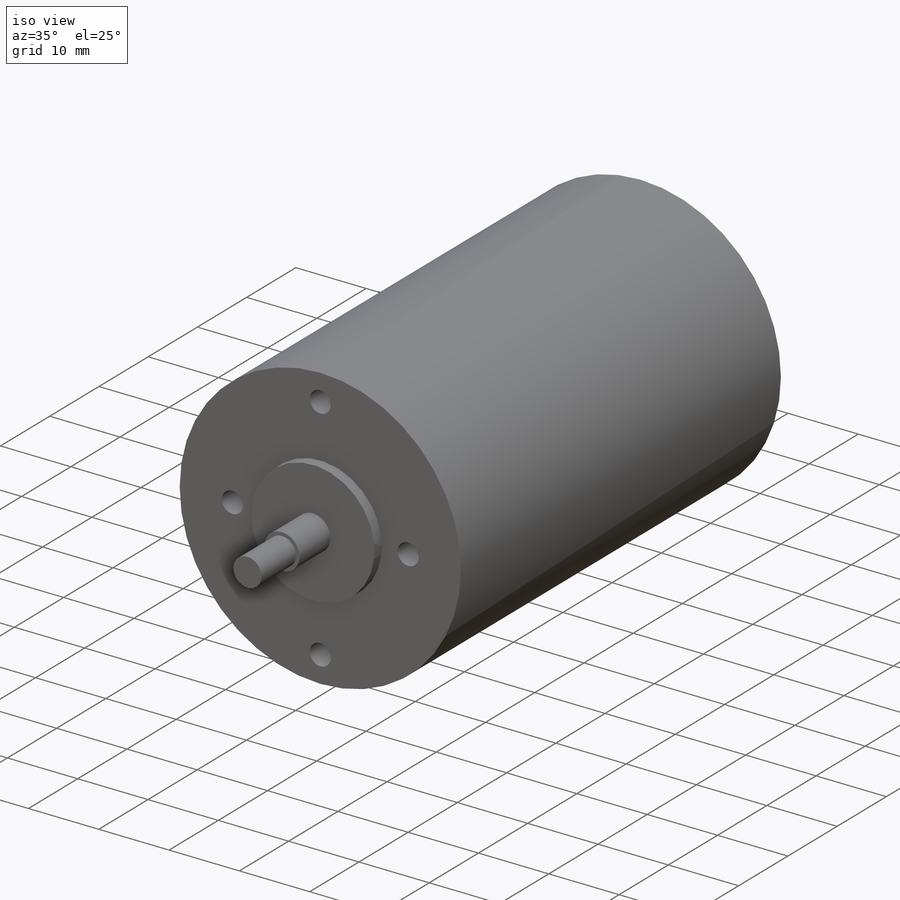
[diagram: iso view]
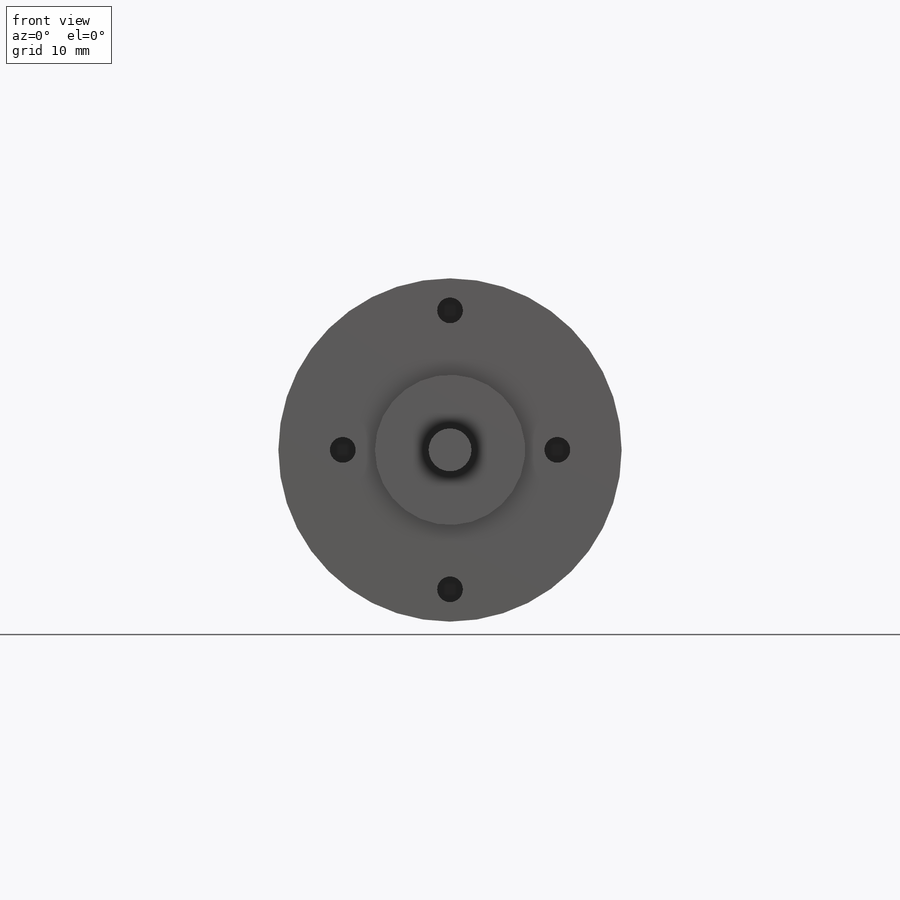
[diagram: front view]
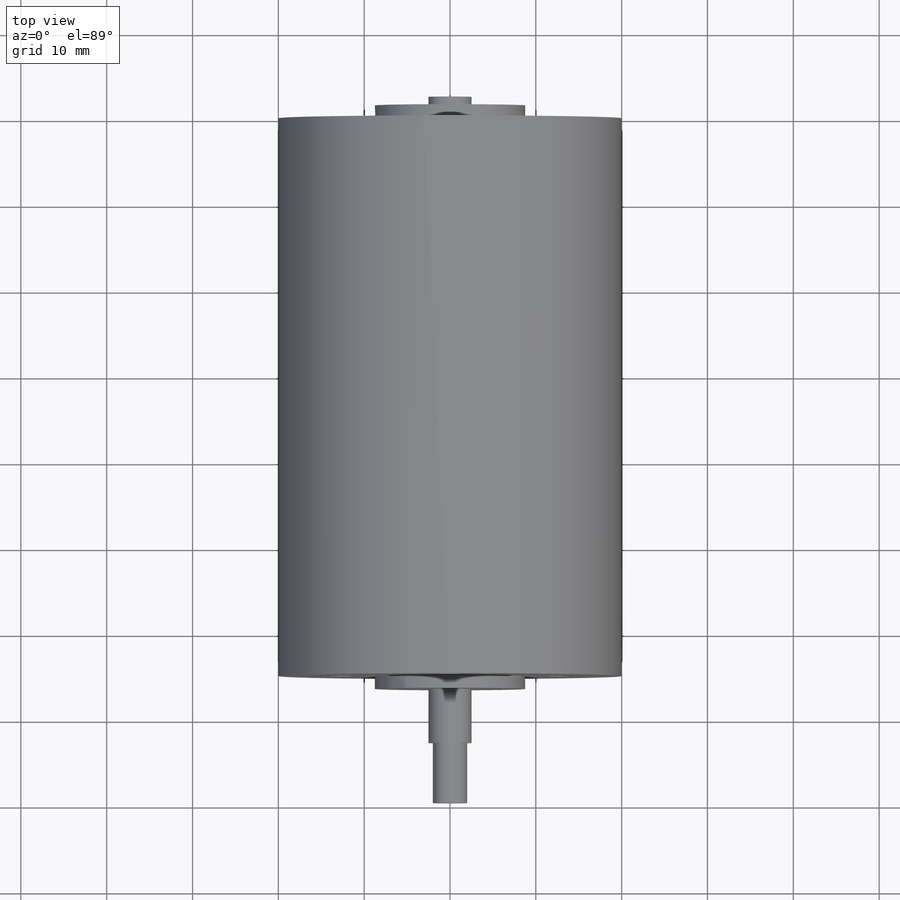
[diagram: top view]
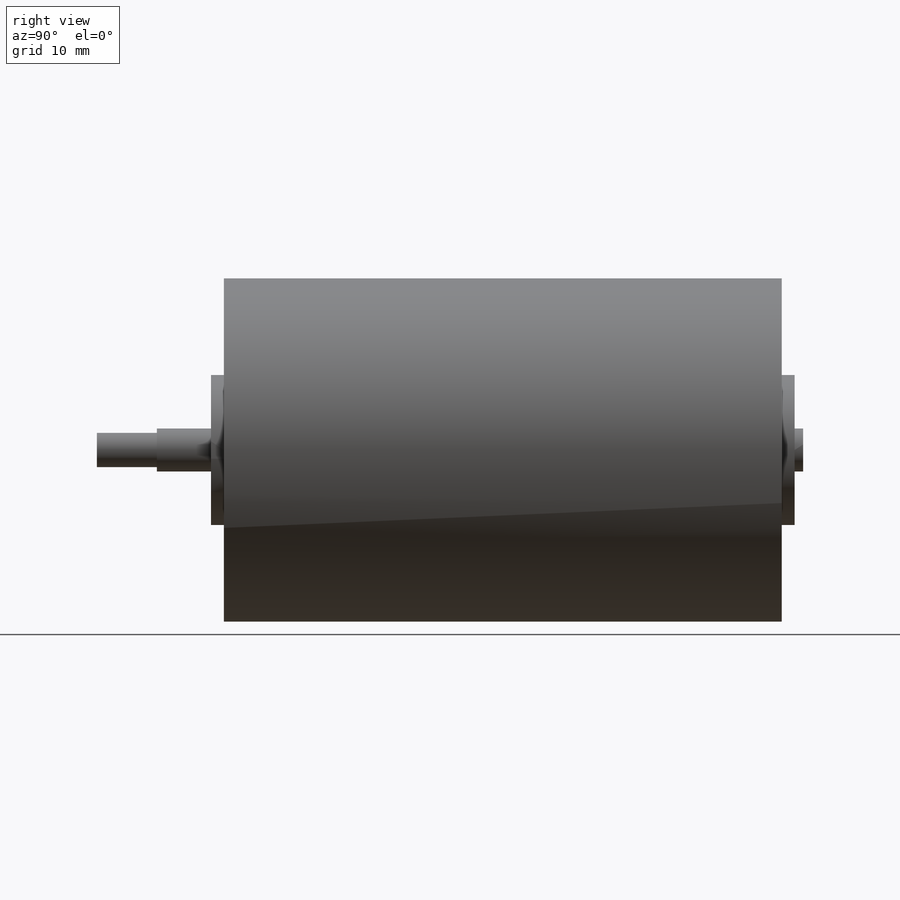
[diagram: right view]
SOLIDWORKS PART (.sldprt)
format: sldprt  version: not decoded by parser v0  size: 190,976 bytes
history: native  units: mm
features: sketch x8, extrude x6, plane x3, cut_extrude x2, material x1 (+10 scaffold rows collapsed)
feature tree (30):
  scaffold x10  (default folders/planes/origin — collapsed)
  material  "1.5714 (16NiCr4)"
  plane  "前基準面"
  plane  "上基準面"
  plane  "右基準面"
  sketch  "草圖3"  dims[D1=40.0mm D2=~23.419277mm]
  extrude  "填料-伸長1"  Depth=65mm
  sketch  "草圖4"  dims[D1=~6.574877mm]
  extrude  "填料-伸長2"  Depth=1.5mm
  sketch  "草圖6"  dims[D1=~10.424986mm]
  extrude  "填料-伸長3"  Depth=1.5mm
  sketch  "草圖7"  dims[D1=0.25mm]
  extrude  "填料-伸長4"  Depth=6.3mm
  sketch  "草圖8"  dims[D1=~1.197305mm]
  extrude  "填料-伸長5"  Depth=7mm
  sketch  "草圖10"  dims[D1=~3.102765mm]
  extrude  "填料-伸長6"  Depth=1mm
  sketch  "草圖11"  dims[D1=1.9605mm]
  cut_extrude  "除料-伸長1"  Depth=4mm
  sketch  "草圖12"  dims[D1=3.75mm]
  cut_extrude  "除料-伸長2"  Depth=4mm
decode coverage: 16 of 16 modeling features carry decoded parameters
note: ~ marks probable driven/reference dimensions
note: suppression state not decoded; provenance and decode notes live in map.json
